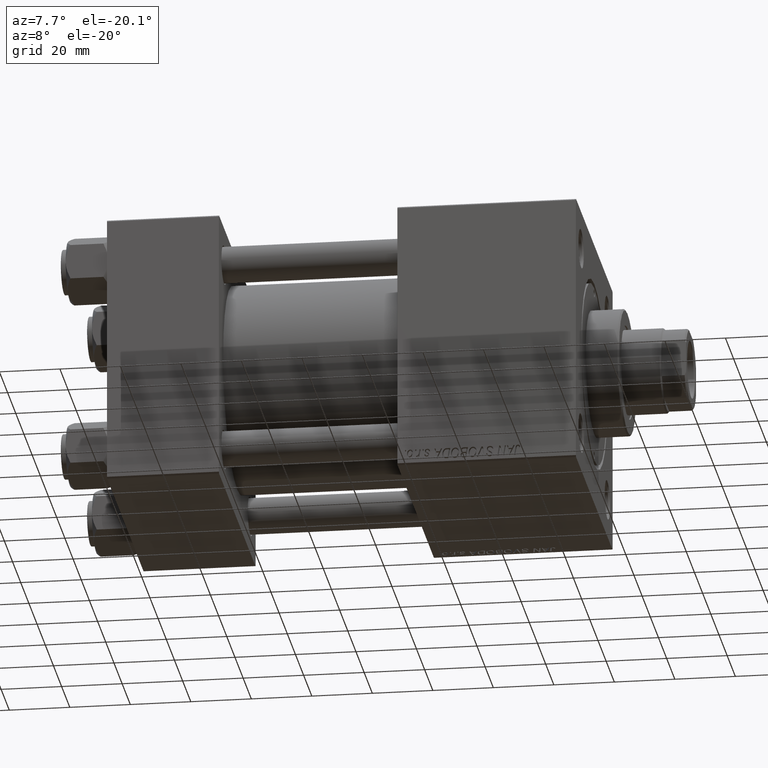
[diagram: clean part render]
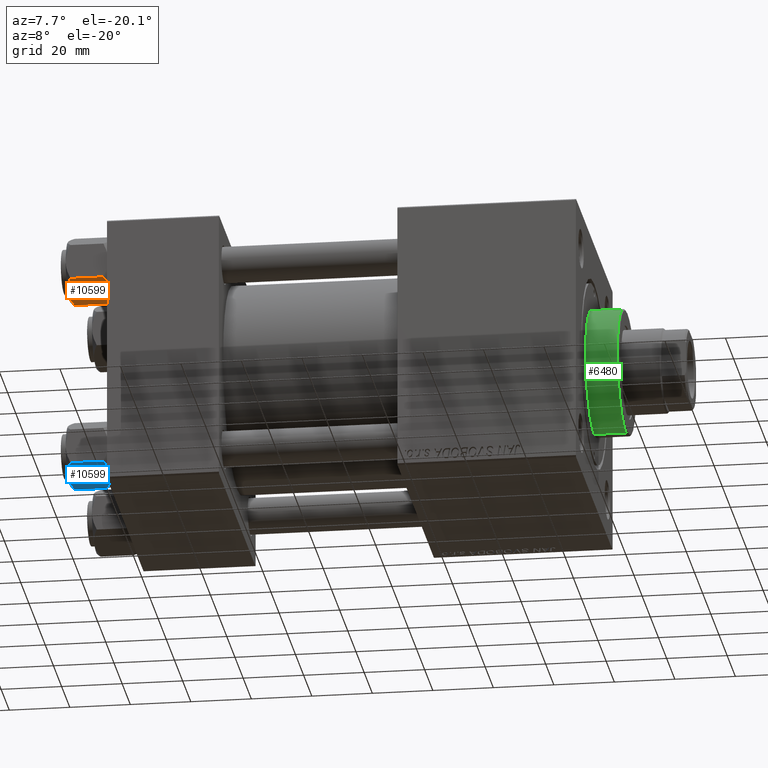
[diagram: same view with three faces highlighted in distinct colors, each labeled with its STEP entity id]
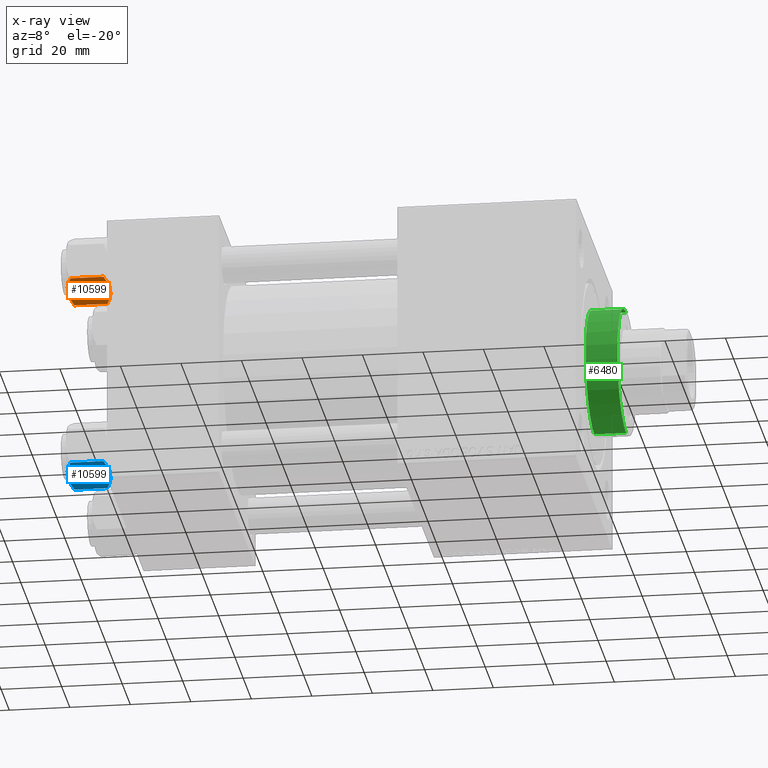
[diagram: x-ray of the same camera — body ghosted, the three highlighted faces saturated]
A machine part, auxiliary view with three faces highlighted in distinct colors.
The next image is the same camera in x-ray (body ghosted, the three faces saturated) — at least one of them is partly hidden behind the body in this view.
Their STEP definitions:

[orange] entity #10599 — the highlighted planar face has unit normal (0, 0.5, 0.866).
#665 = VERTEX_POINT ( 'NONE', #12425 ) ;
#1481 = VECTOR ( 'NONE', #11441, 1000.000000000000000 ) ;
#4166 = CARTESIAN_POINT ( 'NONE',  ( 5.810000000000000497, 10.06321519197518022, -12.44321519197518278 ) ) ;
#5342 = EDGE_CURVE ( 'NONE', #46541, #49738, #41072, .T. ) ;
#5375 = CARTESIAN_POINT ( 'NONE',  ( 8.715000000000003411, 5.031607595987588333, -14.00000000000000000 ) ) ;
#7221 = CARTESIAN_POINT ( 'NONE',  ( 9.729165168613654657, 3.275021996682081493, -0.1903979688073405840 ) ) ;
#7664 = CARTESIAN_POINT ( 'NONE',  ( 5.810000000000000497, 10.06321519197518022, -1.556784808024815892 ) ) ;
#7949 = DIRECTION ( 'NONE',  ( -0.8660254037844387076, -0.4999999999999998335, 0.000000000000000000 ) ) ;
#8067 = EDGE_CURVE ( 'NONE', #665, #47890, #40244, .T. ) ;
#9198 = CARTESIAN_POINT ( 'NONE',  ( 8.460569896449619876, 5.472293462311864864, -14.00000000000000355 ) ) ;
#9453 = CARTESIAN_POINT ( 'NONE',  ( 7.455303369716809847, 7.213466161761385997, -13.69973261901326289 ) ) ;
#9652 = EDGE_CURVE ( 'NONE', #39910, #665, #15794, .T. ) ;
#10075 = CARTESIAN_POINT ( 'NONE',  ( 9.716999946243698005, 3.296092779912227044, -13.84547602999601779 ) ) ;
#10261 = ORIENTED_EDGE ( 'NONE', *, *, #49664, .F. ) ;
#10475 = CARTESIAN_POINT ( 'NONE',  ( 11.62000000000000099, -1.795242522838921761E-15, -12.44321519197518455 ) ) ;
#10599 = ADVANCED_FACE ( 'NONE', ( #41850 ), #18682, .F. ) ;
#11288 = DIRECTION ( 'NONE',  ( 0.4999999999999998335, -0.8660254037844387076, 0.000000000000000000 ) ) ;
#11441 = DIRECTION ( 'NONE',  ( -0.000000000000000000, -0.000000000000000000, 1.000000000000000000 ) ) ;
#12425 = CARTESIAN_POINT ( 'NONE',  ( 8.715000000000003411, 5.031607595987588333, -14.00000000000000000 ) ) ;
#13010 = CARTESIAN_POINT ( 'NONE',  ( 6.265545725125283738, 9.274186850887380373, -12.89876091710046602 ) ) ;
#13523 = CARTESIAN_POINT ( 'NONE',  ( 5.810000000000000497, 10.06321519197518022, -12.44321519197518278 ) ) ;
#14153 = CARTESIAN_POINT ( 'NONE',  ( 10.69662495661650503, 1.599332489581332339, -13.28854452935654962 ) ) ;
#15310 = CARTESIAN_POINT ( 'NONE',  ( 7.713000053756307928, 6.767122412062951398, -0.1545239700039825748 ) ) ;
#15794 = B_SPLINE_CURVE_WITH_KNOTS ( 'NONE', 3,
 ( #13523, #13010, #21688, #9453, #36962, #28552, #9198, #5375 ),
 .UNSPECIFIED., .F., .F.,
 ( 4, 2, 2, 4 ),
 ( 2.544312114902182352E-07, 0.003011550106433540791, 0.004517197944044566184, 0.006022845781655591577 ),
 .UNSPECIFIED. ) ;
#16011 = CARTESIAN_POINT ( 'NONE',  ( 8.715000000000003411, 5.031607595987588333, -14.00000000000000000 ) ) ;
#17762 = EDGE_LOOP ( 'NONE', ( #35911, #39015, #10261, #38582, #39277, #28886 ) ) ;
#18347 = CARTESIAN_POINT ( 'NONE',  ( 11.62000000000000099, -1.813166800014576593E-15, -14.00000000000000000 ) ) ;
#18682 = PLANE ( 'NONE',  #45947 ) ;
#18942 = CARTESIAN_POINT ( 'NONE',  ( 9.227666995912102266, 4.143642311704121894, -0.03994118060690670519 ) ) ;
#21688 = CARTESIAN_POINT ( 'NONE',  ( 6.731401448974989599, 8.467301068182914392, -13.28585617404753272 ) ) ;
#22081 = VERTEX_POINT ( 'NONE', #30336 ) ;
#22761 = CARTESIAN_POINT ( 'NONE',  ( 8.969430103550381617, 4.590921729663312689, 3.523657060577888622E-15 ) ) ;
#23497 = EDGE_CURVE ( 'NONE', #39910, #22081, #34361, .T. ) ;
#25722 = LINE ( 'NONE', #18347, #35744 ) ;
#26575 = CARTESIAN_POINT ( 'NONE',  ( 10.69859855102501278, 1.595914123792262718, -0.7141438259524649501 ) ) ;
#27769 = CARTESIAN_POINT ( 'NONE',  ( 8.715000000000005187, 5.031607595987590109, 0.000000000000000000 ) ) ;
#28552 = CARTESIAN_POINT ( 'NONE',  ( 8.202333004087902779, 5.919572880271052995, -13.96005881939309212 ) ) ;
#28886 = ORIENTED_EDGE ( 'NONE', *, *, #8067, .F. ) ;
#30044 = DIRECTION ( 'NONE',  ( -0.000000000000000000, -0.000000000000000000, 1.000000000000000000 ) ) ;
#30336 = CARTESIAN_POINT ( 'NONE',  ( 5.810000000000000497, 10.06321519197518022, -1.556784808024815892 ) ) ;
#30351 = CARTESIAN_POINT ( 'NONE',  ( 6.265018354709773973, 9.275100283241448196, -1.101766453314953154 ) ) ;
#30604 = CARTESIAN_POINT ( 'NONE',  ( 6.733375043383499126, 8.463882702393844326, -0.7114554706434494946 ) ) ;
#31352 = CARTESIAN_POINT ( 'NONE',  ( 11.62000000000000099, -1.924525737834042474E-15, -1.556784808024813893 ) ) ;
#31551 = CARTESIAN_POINT ( 'NONE',  ( 9.220295946303432189, 4.156409344131451356, -14.00000000000000178 ) ) ;
#34361 = LINE ( 'NONE', #45840, #1481 ) ;
#34695 = CARTESIAN_POINT ( 'NONE',  ( 5.810000000000000497, 10.06321519197518022, -14.00000000000000000 ) ) ;
#35205 = CARTESIAN_POINT ( 'NONE',  ( 9.974696630283190757, 2.849749030213792000, -0.3002673809867367205 ) ) ;
#35744 = VECTOR ( 'NONE', #30044, 1000.000000000000000 ) ;
#35911 = ORIENTED_EDGE ( 'NONE', *, *, #9652, .F. ) ;
#36962 = CARTESIAN_POINT ( 'NONE',  ( 7.700834831386346835, 6.788193195293095172, -13.80960203119265728 ) ) ;
#38164 = EDGE_CURVE ( 'NONE', #47890, #46541, #25722, .T. ) ;
#38542 = CARTESIAN_POINT ( 'NONE',  ( 8.715000000000005187, 5.031607595987590109, 0.000000000000000000 ) ) ;
#38582 = ORIENTED_EDGE ( 'NONE', *, *, #5342, .F. ) ;
#39015 = ORIENTED_EDGE ( 'NONE', *, *, #23497, .T. ) ;
#39277 = ORIENTED_EDGE ( 'NONE', *, *, #38164, .F. ) ;
#39910 = VERTEX_POINT ( 'NONE', #4166 ) ;
#40244 = B_SPLINE_CURVE_WITH_KNOTS ( 'NONE', 3,
 ( #16011, #31551, #10075, #14153, #44716, #48542 ),
 .UNSPECIFIED., .F., .F.,
 ( 4, 2, 4 ),
 ( 0.006022845781655591577, 0.009013049135303638493, 0.01200325248895168714 ),
 .UNSPECIFIED. ) ;
#41072 = B_SPLINE_CURVE_WITH_KNOTS ( 'NONE', 3,
 ( #42108, #50256, #26575, #35205, #7221, #18942, #22761, #38542 ),
 .UNSPECIFIED., .F., .F.,
 ( 4, 2, 2, 4 ),
 ( 2.544312114903581015E-07, 0.003011550106433540791, 0.004517197944044564449, 0.006022845781655588107 ),
 .UNSPECIFIED. ) ;
#41850 = FACE_OUTER_BOUND ( 'NONE', #17762, .T. ) ;
#42108 = CARTESIAN_POINT ( 'NONE',  ( 11.62000000000000099, -1.924525737834042474E-15, -1.556784808024813893 ) ) ;
#44716 = CARTESIAN_POINT ( 'NONE',  ( 11.16498164529022574, 0.7881149087337280257, -12.89823354668504862 ) ) ;
#45632 = CARTESIAN_POINT ( 'NONE',  ( 8.715000000000005187, 5.031607595987590109, 0.000000000000000000 ) ) ;
#45840 = CARTESIAN_POINT ( 'NONE',  ( 5.810000000000000497, 10.06321519197518022, -14.00000000000000000 ) ) ;
#45947 = AXIS2_PLACEMENT_3D ( 'NONE', #34695, #7949, #11288 ) ;
#46136 = CARTESIAN_POINT ( 'NONE',  ( 8.209704053696576409, 5.906805847843727086, 3.430483436379916373E-15 ) ) ;
#46326 = B_SPLINE_CURVE_WITH_KNOTS ( 'NONE', 3,
 ( #45632, #46136, #15310, #30604, #30351, #7664 ),
 .UNSPECIFIED., .F., .F.,
 ( 4, 2, 4 ),
 ( 0.006022845781655588107, 0.009013049135303636758, 0.01200325248895168367 ),
 .UNSPECIFIED. ) ;
#46541 = VERTEX_POINT ( 'NONE', #31352 ) ;
#47890 = VERTEX_POINT ( 'NONE', #10475 ) ;
#48542 = CARTESIAN_POINT ( 'NONE',  ( 11.62000000000000099, -1.795242522838921761E-15, -12.44321519197518455 ) ) ;
#49664 = EDGE_CURVE ( 'NONE', #49738, #22081, #46326, .T. ) ;
#49738 = VERTEX_POINT ( 'NONE', #27769 ) ;
#50256 = CARTESIAN_POINT ( 'NONE',  ( 11.16445427487472131, 0.7890283410877956261, -1.101239082899531985 ) ) ;

[blue] entity #10599 — the highlighted planar face has unit normal (0, 0.5, 0.866).
#665 = VERTEX_POINT ( 'NONE', #12425 ) ;
#1481 = VECTOR ( 'NONE', #11441, 1000.000000000000000 ) ;
#4166 = CARTESIAN_POINT ( 'NONE',  ( 5.810000000000000497, 10.06321519197518022, -12.44321519197518278 ) ) ;
#5342 = EDGE_CURVE ( 'NONE', #46541, #49738, #41072, .T. ) ;
#5375 = CARTESIAN_POINT ( 'NONE',  ( 8.715000000000003411, 5.031607595987588333, -14.00000000000000000 ) ) ;
#7221 = CARTESIAN_POINT ( 'NONE',  ( 9.729165168613654657, 3.275021996682081493, -0.1903979688073405840 ) ) ;
#7664 = CARTESIAN_POINT ( 'NONE',  ( 5.810000000000000497, 10.06321519197518022, -1.556784808024815892 ) ) ;
#7949 = DIRECTION ( 'NONE',  ( -0.8660254037844387076, -0.4999999999999998335, 0.000000000000000000 ) ) ;
#8067 = EDGE_CURVE ( 'NONE', #665, #47890, #40244, .T. ) ;
#9198 = CARTESIAN_POINT ( 'NONE',  ( 8.460569896449619876, 5.472293462311864864, -14.00000000000000355 ) ) ;
#9453 = CARTESIAN_POINT ( 'NONE',  ( 7.455303369716809847, 7.213466161761385997, -13.69973261901326289 ) ) ;
#9652 = EDGE_CURVE ( 'NONE', #39910, #665, #15794, .T. ) ;
#10075 = CARTESIAN_POINT ( 'NONE',  ( 9.716999946243698005, 3.296092779912227044, -13.84547602999601779 ) ) ;
#10261 = ORIENTED_EDGE ( 'NONE', *, *, #49664, .F. ) ;
#10475 = CARTESIAN_POINT ( 'NONE',  ( 11.62000000000000099, -1.795242522838921761E-15, -12.44321519197518455 ) ) ;
#10599 = ADVANCED_FACE ( 'NONE', ( #41850 ), #18682, .F. ) ;
#11288 = DIRECTION ( 'NONE',  ( 0.4999999999999998335, -0.8660254037844387076, 0.000000000000000000 ) ) ;
#11441 = DIRECTION ( 'NONE',  ( -0.000000000000000000, -0.000000000000000000, 1.000000000000000000 ) ) ;
#12425 = CARTESIAN_POINT ( 'NONE',  ( 8.715000000000003411, 5.031607595987588333, -14.00000000000000000 ) ) ;
#13010 = CARTESIAN_POINT ( 'NONE',  ( 6.265545725125283738, 9.274186850887380373, -12.89876091710046602 ) ) ;
#13523 = CARTESIAN_POINT ( 'NONE',  ( 5.810000000000000497, 10.06321519197518022, -12.44321519197518278 ) ) ;
#14153 = CARTESIAN_POINT ( 'NONE',  ( 10.69662495661650503, 1.599332489581332339, -13.28854452935654962 ) ) ;
#15310 = CARTESIAN_POINT ( 'NONE',  ( 7.713000053756307928, 6.767122412062951398, -0.1545239700039825748 ) ) ;
#15794 = B_SPLINE_CURVE_WITH_KNOTS ( 'NONE', 3,
 ( #13523, #13010, #21688, #9453, #36962, #28552, #9198, #5375 ),
 .UNSPECIFIED., .F., .F.,
 ( 4, 2, 2, 4 ),
 ( 2.544312114902182352E-07, 0.003011550106433540791, 0.004517197944044566184, 0.006022845781655591577 ),
 .UNSPECIFIED. ) ;
#16011 = CARTESIAN_POINT ( 'NONE',  ( 8.715000000000003411, 5.031607595987588333, -14.00000000000000000 ) ) ;
#17762 = EDGE_LOOP ( 'NONE', ( #35911, #39015, #10261, #38582, #39277, #28886 ) ) ;
#18347 = CARTESIAN_POINT ( 'NONE',  ( 11.62000000000000099, -1.813166800014576593E-15, -14.00000000000000000 ) ) ;
#18682 = PLANE ( 'NONE',  #45947 ) ;
#18942 = CARTESIAN_POINT ( 'NONE',  ( 9.227666995912102266, 4.143642311704121894, -0.03994118060690670519 ) ) ;
#21688 = CARTESIAN_POINT ( 'NONE',  ( 6.731401448974989599, 8.467301068182914392, -13.28585617404753272 ) ) ;
#22081 = VERTEX_POINT ( 'NONE', #30336 ) ;
#22761 = CARTESIAN_POINT ( 'NONE',  ( 8.969430103550381617, 4.590921729663312689, 3.523657060577888622E-15 ) ) ;
#23497 = EDGE_CURVE ( 'NONE', #39910, #22081, #34361, .T. ) ;
#25722 = LINE ( 'NONE', #18347, #35744 ) ;
#26575 = CARTESIAN_POINT ( 'NONE',  ( 10.69859855102501278, 1.595914123792262718, -0.7141438259524649501 ) ) ;
#27769 = CARTESIAN_POINT ( 'NONE',  ( 8.715000000000005187, 5.031607595987590109, 0.000000000000000000 ) ) ;
#28552 = CARTESIAN_POINT ( 'NONE',  ( 8.202333004087902779, 5.919572880271052995, -13.96005881939309212 ) ) ;
#28886 = ORIENTED_EDGE ( 'NONE', *, *, #8067, .F. ) ;
#30044 = DIRECTION ( 'NONE',  ( -0.000000000000000000, -0.000000000000000000, 1.000000000000000000 ) ) ;
#30336 = CARTESIAN_POINT ( 'NONE',  ( 5.810000000000000497, 10.06321519197518022, -1.556784808024815892 ) ) ;
#30351 = CARTESIAN_POINT ( 'NONE',  ( 6.265018354709773973, 9.275100283241448196, -1.101766453314953154 ) ) ;
#30604 = CARTESIAN_POINT ( 'NONE',  ( 6.733375043383499126, 8.463882702393844326, -0.7114554706434494946 ) ) ;
#31352 = CARTESIAN_POINT ( 'NONE',  ( 11.62000000000000099, -1.924525737834042474E-15, -1.556784808024813893 ) ) ;
#31551 = CARTESIAN_POINT ( 'NONE',  ( 9.220295946303432189, 4.156409344131451356, -14.00000000000000178 ) ) ;
#34361 = LINE ( 'NONE', #45840, #1481 ) ;
#34695 = CARTESIAN_POINT ( 'NONE',  ( 5.810000000000000497, 10.06321519197518022, -14.00000000000000000 ) ) ;
#35205 = CARTESIAN_POINT ( 'NONE',  ( 9.974696630283190757, 2.849749030213792000, -0.3002673809867367205 ) ) ;
#35744 = VECTOR ( 'NONE', #30044, 1000.000000000000000 ) ;
#35911 = ORIENTED_EDGE ( 'NONE', *, *, #9652, .F. ) ;
#36962 = CARTESIAN_POINT ( 'NONE',  ( 7.700834831386346835, 6.788193195293095172, -13.80960203119265728 ) ) ;
#38164 = EDGE_CURVE ( 'NONE', #47890, #46541, #25722, .T. ) ;
#38542 = CARTESIAN_POINT ( 'NONE',  ( 8.715000000000005187, 5.031607595987590109, 0.000000000000000000 ) ) ;
#38582 = ORIENTED_EDGE ( 'NONE', *, *, #5342, .F. ) ;
#39015 = ORIENTED_EDGE ( 'NONE', *, *, #23497, .T. ) ;
#39277 = ORIENTED_EDGE ( 'NONE', *, *, #38164, .F. ) ;
#39910 = VERTEX_POINT ( 'NONE', #4166 ) ;
#40244 = B_SPLINE_CURVE_WITH_KNOTS ( 'NONE', 3,
 ( #16011, #31551, #10075, #14153, #44716, #48542 ),
 .UNSPECIFIED., .F., .F.,
 ( 4, 2, 4 ),
 ( 0.006022845781655591577, 0.009013049135303638493, 0.01200325248895168714 ),
 .UNSPECIFIED. ) ;
#41072 = B_SPLINE_CURVE_WITH_KNOTS ( 'NONE', 3,
 ( #42108, #50256, #26575, #35205, #7221, #18942, #22761, #38542 ),
 .UNSPECIFIED., .F., .F.,
 ( 4, 2, 2, 4 ),
 ( 2.544312114903581015E-07, 0.003011550106433540791, 0.004517197944044564449, 0.006022845781655588107 ),
 .UNSPECIFIED. ) ;
#41850 = FACE_OUTER_BOUND ( 'NONE', #17762, .T. ) ;
#42108 = CARTESIAN_POINT ( 'NONE',  ( 11.62000000000000099, -1.924525737834042474E-15, -1.556784808024813893 ) ) ;
#44716 = CARTESIAN_POINT ( 'NONE',  ( 11.16498164529022574, 0.7881149087337280257, -12.89823354668504862 ) ) ;
#45632 = CARTESIAN_POINT ( 'NONE',  ( 8.715000000000005187, 5.031607595987590109, 0.000000000000000000 ) ) ;
#45840 = CARTESIAN_POINT ( 'NONE',  ( 5.810000000000000497, 10.06321519197518022, -14.00000000000000000 ) ) ;
#45947 = AXIS2_PLACEMENT_3D ( 'NONE', #34695, #7949, #11288 ) ;
#46136 = CARTESIAN_POINT ( 'NONE',  ( 8.209704053696576409, 5.906805847843727086, 3.430483436379916373E-15 ) ) ;
#46326 = B_SPLINE_CURVE_WITH_KNOTS ( 'NONE', 3,
 ( #45632, #46136, #15310, #30604, #30351, #7664 ),
 .UNSPECIFIED., .F., .F.,
 ( 4, 2, 4 ),
 ( 0.006022845781655588107, 0.009013049135303636758, 0.01200325248895168367 ),
 .UNSPECIFIED. ) ;
#46541 = VERTEX_POINT ( 'NONE', #31352 ) ;
#47890 = VERTEX_POINT ( 'NONE', #10475 ) ;
#48542 = CARTESIAN_POINT ( 'NONE',  ( 11.62000000000000099, -1.795242522838921761E-15, -12.44321519197518455 ) ) ;
#49664 = EDGE_CURVE ( 'NONE', #49738, #22081, #46326, .T. ) ;
#49738 = VERTEX_POINT ( 'NONE', #27769 ) ;
#50256 = CARTESIAN_POINT ( 'NONE',  ( 11.16445427487472131, 0.7890283410877956261, -1.101239082899531985 ) ) ;

[green] entity #6480 — the highlighted cylindrical surface (partial cylindrical patch) has radius 21 mm, axis along (-1, -0, -0).
#2904 = CARTESIAN_POINT ( 'NONE',  ( -21.00000000000000000, 0.000000000000000000, 39.19999999999999574 ) ) ;
#4528 = CARTESIAN_POINT ( 'NONE',  ( 0.000000000000000000, 0.000000000000000000, 28.69999999999999929 ) ) ;
#4658 = AXIS2_PLACEMENT_3D ( 'NONE', #4528, #31287, #46573 ) ;
#4731 = VERTEX_POINT ( 'NONE', #7395 ) ;
#5032 = VECTOR ( 'NONE', #22201, 1000.000000000000000 ) ;
#6016 = CARTESIAN_POINT ( 'NONE',  ( 21.00000000000000000, 2.571758278209441661E-15, 39.19999999999999574 ) ) ;
#6480 = ADVANCED_FACE ( 'NONE', ( #26398 ), #10360, .T. ) ;
#6788 = AXIS2_PLACEMENT_3D ( 'NONE', #44151, #9258, #44663 ) ;
#6986 = ORIENTED_EDGE ( 'NONE', *, *, #43946, .F. ) ;
#7395 = CARTESIAN_POINT ( 'NONE',  ( -21.00000000000000000, 0.000000000000000000, 28.69999999999999929 ) ) ;
#9258 = DIRECTION ( 'NONE',  ( -0.000000000000000000, -0.000000000000000000, -1.000000000000000000 ) ) ;
#10360 = CYLINDRICAL_SURFACE ( 'NONE', #6788, 21.00000000000000000 ) ;
#14414 = CIRCLE ( 'NONE', #4658, 21.00000000000000000 ) ;
#14797 = LINE ( 'NONE', #15054, #5032 ) ;
#14911 = EDGE_LOOP ( 'NONE', ( #6986, #40063, #15722, #40859 ) ) ;
#15054 = CARTESIAN_POINT ( 'NONE',  ( 21.00000000000000000, 2.571758278209441661E-15, 39.69999999999999574 ) ) ;
#15722 = ORIENTED_EDGE ( 'NONE', *, *, #23053, .T. ) ;
#20403 = EDGE_CURVE ( 'NONE', #4731, #43654, #14414, .T. ) ;
#22201 = DIRECTION ( 'NONE',  ( -0.000000000000000000, -0.000000000000000000, -1.000000000000000000 ) ) ;
#22881 = VERTEX_POINT ( 'NONE', #2904 ) ;
#23053 = EDGE_CURVE ( 'NONE', #22881, #4731, #46822, .T. ) ;
#23664 = CIRCLE ( 'NONE', #30180, 21.00000000000000000 ) ;
#26398 = FACE_OUTER_BOUND ( 'NONE', #14911, .T. ) ;
#26697 = VECTOR ( 'NONE', #31537, 1000.000000000000000 ) ;
#27426 = VERTEX_POINT ( 'NONE', #6016 ) ;
#29138 = CARTESIAN_POINT ( 'NONE',  ( 21.00000000000000000, 2.571758278209441661E-15, 28.69999999999999929 ) ) ;
#30180 = AXIS2_PLACEMENT_3D ( 'NONE', #30801, #34356, #45584 ) ;
#30739 = EDGE_CURVE ( 'NONE', #27426, #22881, #23664, .T. ) ;
#30801 = CARTESIAN_POINT ( 'NONE',  ( 0.000000000000000000, 0.000000000000000000, 39.19999999999999574 ) ) ;
#31287 = DIRECTION ( 'NONE',  ( 0.000000000000000000, 0.000000000000000000, 1.000000000000000000 ) ) ;
#31288 = CARTESIAN_POINT ( 'NONE',  ( -21.00000000000000000, 0.000000000000000000, 39.69999999999999574 ) ) ;
#31537 = DIRECTION ( 'NONE',  ( -0.000000000000000000, -0.000000000000000000, -1.000000000000000000 ) ) ;
#34356 = DIRECTION ( 'NONE',  ( 0.000000000000000000, 0.000000000000000000, -1.000000000000000000 ) ) ;
#40063 = ORIENTED_EDGE ( 'NONE', *, *, #30739, .T. ) ;
#40859 = ORIENTED_EDGE ( 'NONE', *, *, #20403, .T. ) ;
#43654 = VERTEX_POINT ( 'NONE', #29138 ) ;
#43946 = EDGE_CURVE ( 'NONE', #27426, #43654, #14797, .T. ) ;
#44151 = CARTESIAN_POINT ( 'NONE',  ( 0.000000000000000000, 0.000000000000000000, 39.69999999999999574 ) ) ;
#44663 = DIRECTION ( 'NONE',  ( -1.000000000000000000, 0.000000000000000000, 0.000000000000000000 ) ) ;
#45584 = DIRECTION ( 'NONE',  ( 1.000000000000000000, 0.000000000000000000, 0.000000000000000000 ) ) ;
#46573 = DIRECTION ( 'NONE',  ( 1.000000000000000000, 0.000000000000000000, 0.000000000000000000 ) ) ;
#46822 = LINE ( 'NONE', #31288, #26697 ) ;